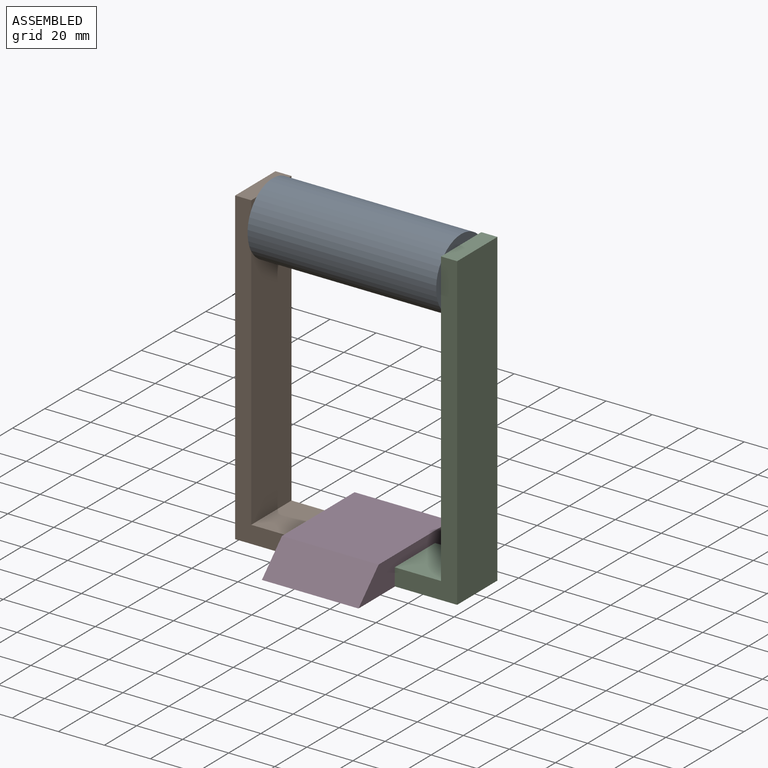
[diagram: assembled view]
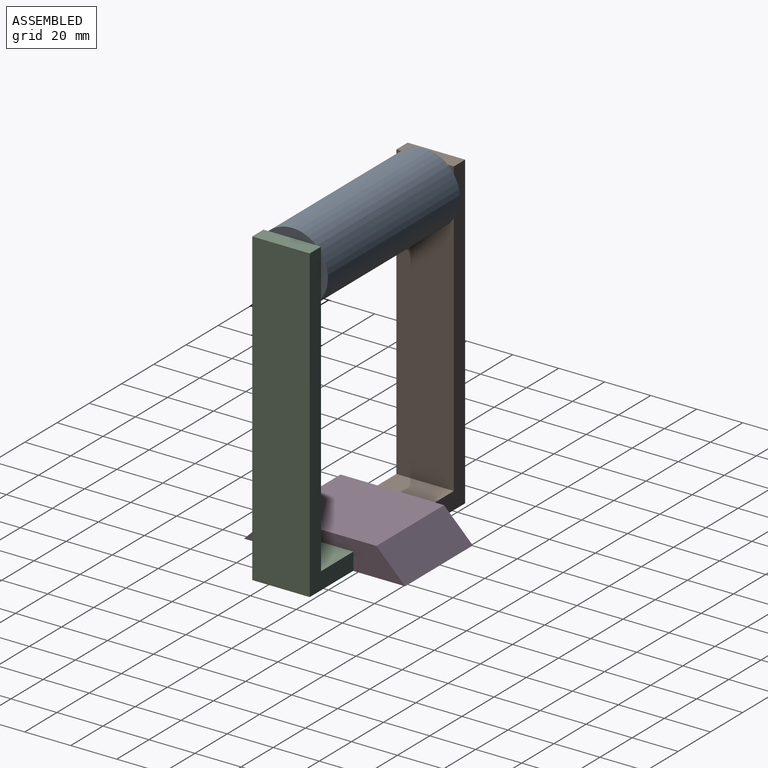
[diagram: assembled view, second angle]
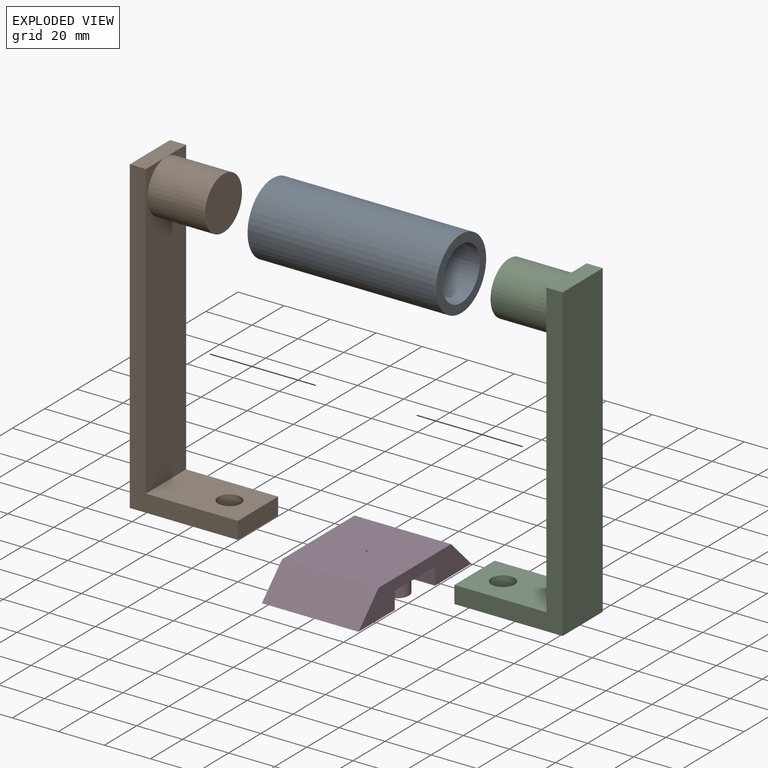
[diagram: exploded view]
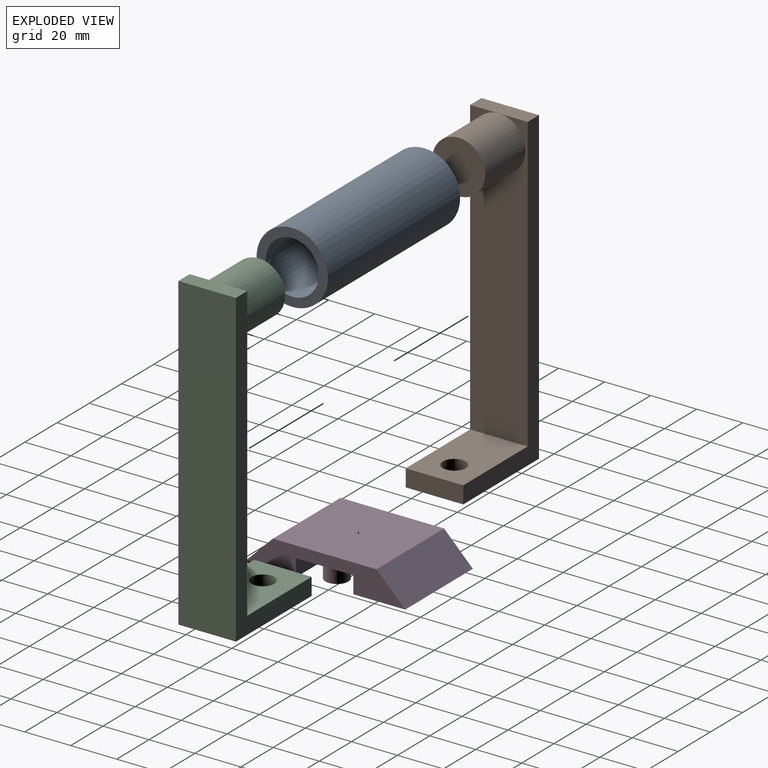
[diagram: exploded view, second angle]
ASSEMBLY  parts=4 mates=3
PART A: 4 faces, bbox 31.1x82x31.1 mm
  f0: cylinder r=11.53mm len=82mm, axis (0,1,0), area 5937.9mm2, adj f2,f3
  f1: cylinder r=15.53mm len=82mm, axis (0,1,0), area 7998.8mm2, adj f2,f3
  f2: plane 31.05x31.05mm, normal (0,-1,0), area 339.9mm2, adj f0,f1
  f3: plane 31.05x31.05mm, normal (0,1,0), area 339.9mm2, adj f0,f1
PART B: 11 faces, bbox 47x25x135 mm
  f0: plane 127.5x25mm, normal (1,0,0), area 2772mm2, adj f1,f4,f5,f6,f8
  f1: plane 25x7mm, normal (0,0,1), area 175mm2, adj f0,f2,f4,f5
  f2: plane 135x25mm, normal (-1,0,0), area 3375mm2, adj f1,f3,f4,f5
  f3: plane 47x25mm, normal (0,0,-1), area 1096.5mm2, adj f2,f4,f5,f9,f10
  f4: plane 135x47mm, normal (0,-1,0), area 1245mm2, adj f0,f1,f2,f3,f8,f9
  f5: plane 135x47mm, normal (0,1,0), area 1245mm2, adj f0,f1,f2,f3,f8,f9
  f6: cylinder r=11.5mm len=25mm, axis (-1,0,0), area 1806.4mm2, adj f0,f7
  f7: plane 23x23mm, normal (1,0,0), area 415.5mm2, adj f6
  f8: plane 40x25mm, normal (0,0,1), area 921.5mm2, adj f0,f4,f5,f9,f10
  f9: plane 25x7.5mm, normal (1,0,0), area 187.5mm2, adj f3,f4,f5,f8
  f10: cylinder r=5mm len=10mm, axis (0,0,1), area 235.6mm2, adj f3,f8
PART C: same geometry as B
PART D: 14 faces, bbox 42x70x12.5 mm
  f0: plane 42x25mm, normal (0,0,1), area 892.9mm2, adj f1,f2,f4,f6,f8,f10
  f1: plane 70x12.5mm, normal (-1,0,0), area 531.3mm2, adj f0,f3,f8,f9,f10,f11,f12,f13
  f2: plane 70x12.5mm, normal (1,0,0), area 531.3mm2, adj f0,f3,f8,f9,f10,f11,f12,f13
  f3: plane 45x42mm, normal (0,0,-1), area 1890mm2, adj f1,f2,f12,f13
  f4: cylinder r=5mm len=10mm, axis (0,0,-1), area 232.5mm2, adj f0,f5
  f5: plane 10x10mm, normal (0,0,1), area 78.5mm2, adj f4
  f6: cylinder r=5mm len=10mm, axis (0,0,-1), area 232.5mm2, adj f0,f7
  f7: plane 10x10mm, normal (0,0,1), area 78.5mm2, adj f6
  f8: plane 42x7.5mm, normal (0,-1,0), area 315mm2, adj f0,f1,f2,f9
  f9: plane 42x22.5mm, normal (0,0,1), area 945mm2, adj f1,f2,f8,f12
  f10: plane 42x7.5mm, normal (0,1,0), area 315mm2, adj f0,f1,f2,f11
  f11: plane 42x22.5mm, normal (0,0,1), area 945mm2, adj f1,f2,f10,f13
  f12: plane 42x12.5mm, normal (0,0.71,-0.71), area 742.5mm2, adj f1,f2,f3,f9
  f13: plane 42x12.5mm, normal (0,-0.71,-0.71), area 742.5mm2, adj f1,f2,f3,f11
PLACE A rot(axis=(0,0,1),90deg) t=(-39.14,-39.73,19.47)mm
PLACE B t=(-12.02,-27.23,-44.78)mm
PLACE C rot(axis=(0,0,1),180deg) t=(15.24,-52.23,-44.78)mm
PLACE D rot(axis=(1,0,0),180deg) t=(1.74,-39.73,-91.63)mm
MATE fastened C.f6 <-> A.f1  axis (1,0,0) through (17.86,-39.73,19.47)mm
MATE fastened A.f1 <-> B.f6  axis (-1,0,0) through (1.86,-39.73,19.47)mm
MATE fastened D.f4 <-> B.f3  axis (0,0,-1) through (-11.64,-39.73,-104.03)mm
